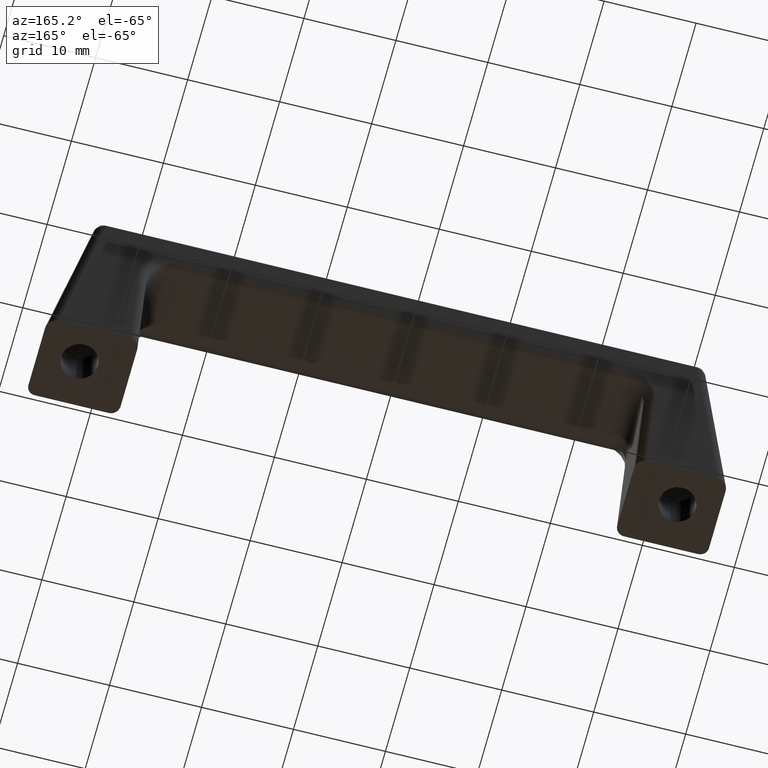
[diagram: clean part render]
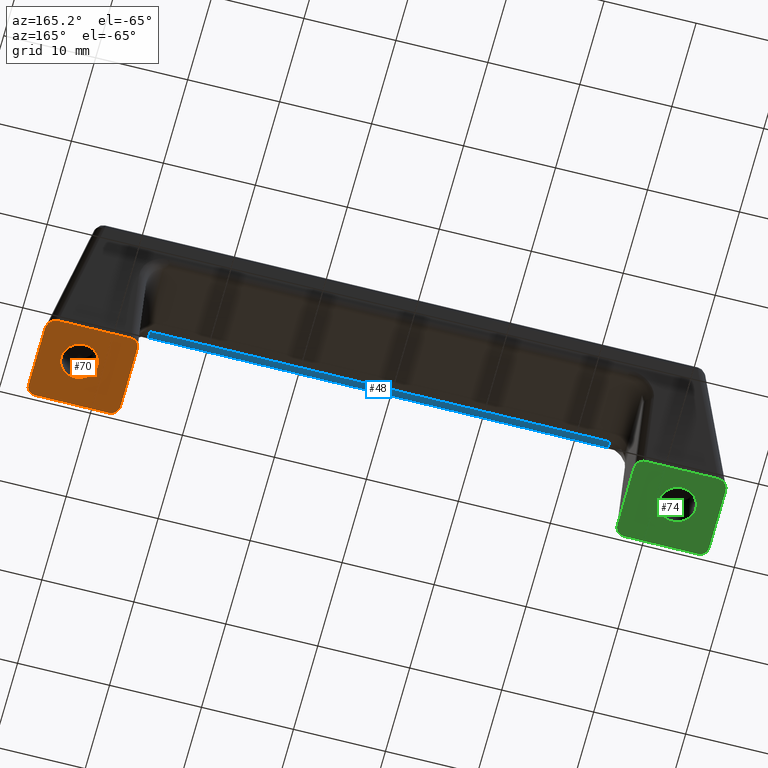
[diagram: same view with three faces highlighted in distinct colors, each labeled with its STEP entity id]
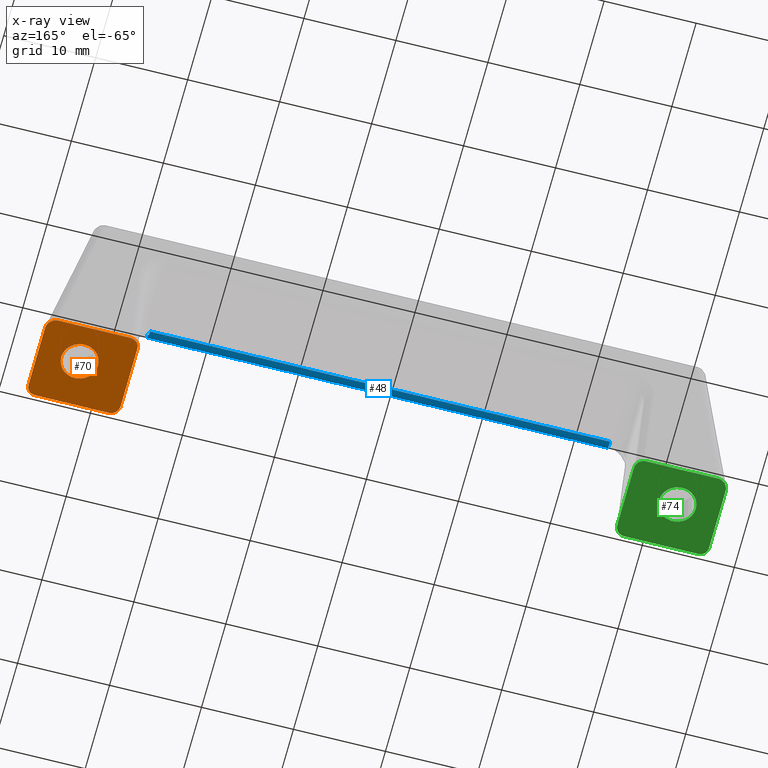
[diagram: x-ray of the same camera — body ghosted, the three highlighted faces saturated]
A machine part, auxiliary view with three faces highlighted in distinct colors.
The next image is the same camera in x-ray (body ghosted, the three faces saturated) — at least one of them is partly hidden behind the body in this view.
Their STEP definitions:

[orange] entity #70 — the highlighted planar face has unit normal (0, 0, 1).
#70=ADVANCED_FACE('',(#381,#382),#380,.F.);
#380=PLANE('',#1225);
#381=FACE_OUTER_BOUND('',#1226,.T.);
#382=FACE_BOUND('',#1227,.T.);
#1222=CARTESIAN_POINT('',(2.60000000000E+01,-9.00000026315E-01,0.00000000000E+00));
#1223=DIRECTION('',(0.00000000000E+00,0.00000000000E+00,1.00000000000E+00));
#1224=DIRECTION('',(1.00000000000E+00,0.00000000000E+00,0.00000000000E+00));
#1225=AXIS2_PLACEMENT_3D('',#1222,#1223,#1224);
#1226=EDGE_LOOP('',(#1394,#1395,#1396,#1397,#1398,#1399,#1400,#1401));
#1227=EDGE_LOOP('',(#1402,#1403,#1404));
#1394=ORIENTED_EDGE('',*,*,#1535,.F.);
#1395=ORIENTED_EDGE('',*,*,#1504,.T.);
#1396=ORIENTED_EDGE('',*,*,#1536,.T.);
#1397=ORIENTED_EDGE('',*,*,#1519,.T.);
#1398=ORIENTED_EDGE('',*,*,#1537,.T.);
#1399=ORIENTED_EDGE('',*,*,#1472,.T.);
#1400=ORIENTED_EDGE('',*,*,#1532,.T.);
#1401=ORIENTED_EDGE('',*,*,#1475,.T.);
#1402=ORIENTED_EDGE('',*,*,#1538,.T.);
#1403=ORIENTED_EDGE('',*,*,#1539,.T.);
#1404=ORIENTED_EDGE('',*,*,#1540,.T.);
#1472=EDGE_CURVE('',#1645,#1646,#1647,.T.);
#1475=EDGE_CURVE('',#1665,#1666,#1667,.T.);
#1504=EDGE_CURVE('',#1861,#1862,#1863,.T.);
#1519=EDGE_CURVE('',#1962,#1955,#1963,.T.);
#1532=EDGE_CURVE('',#1646,#1665,#2044,.T.);
#1535=EDGE_CURVE('',#1861,#1666,#2062,.T.);
#1536=EDGE_CURVE('',#1862,#1962,#2068,.T.);
#1537=EDGE_CURVE('',#1955,#1645,#2074,.T.);
#1538=EDGE_CURVE('',#2080,#2081,#2082,.T.);
#1539=EDGE_CURVE('',#2081,#2088,#2089,.T.);
#1540=EDGE_CURVE('',#2088,#2080,#2095,.T.);
#1645=VERTEX_POINT('',#2220);
#1646=VERTEX_POINT('',#2221);
#1647=(BOUNDED_CURVE() B_SPLINE_CURVE(2,(#2222,#2223,#2224),.UNSPECIFIED.,.F.,.F.) B_SPLINE_CURVE_WITH_KNOTS((3,3),(0.00000000000E+00,1.00000000000E+00),.UNSPECIFIED.) CURVE() GEOMETRIC_REPRESENTATION_ITEM() RATIONAL_B_SPLINE_CURVE((1.00000000000E+00,7.40086770668E-01,1.00000000000E+00)) REPRESENTATION_ITEM('') );
#1665=VERTEX_POINT('',#2231);
#1666=VERTEX_POINT('',#2232);
#1667=(BOUNDED_CURVE() B_SPLINE_CURVE(2,(#2233,#2234,#2235),.UNSPECIFIED.,.F.,.F.) B_SPLINE_CURVE_WITH_KNOTS((3,3),(0.00000000000E+00,1.00000000000E+00),.UNSPECIFIED.) CURVE() GEOMETRIC_REPRESENTATION_ITEM() RATIONAL_B_SPLINE_CURVE((1.00000000000E+00,7.07106988869E-01,1.00000000000E+00)) REPRESENTATION_ITEM('') );
#1861=VERTEX_POINT('',#2352);
#1862=VERTEX_POINT('',#2353);
#1863=(BOUNDED_CURVE() B_SPLINE_CURVE(2,(#2354,#2355,#2356,#2357,#2358),.UNSPECIFIED.,.F.,.F.) B_SPLINE_CURVE_WITH_KNOTS((3,2,3),(0.00000000000E+00,5.00000000000E-01,1.00000000000E+00),.UNSPECIFIED.) CURVE() GEOMETRIC_REPRESENTATION_ITEM() RATIONAL_B_SPLINE_CURVE((1.00000000000E+00,9.23879476078E-01,1.00000000000E+00,9.23879476078E-01,1.00000000000E+00)) REPRESENTATION_ITEM('') );
#1955=VERTEX_POINT('',#2414);
#1962=VERTEX_POINT('',#2418);
#1963=(BOUNDED_CURVE() B_SPLINE_CURVE(2,(#2419,#2420,#2421,#2422,#2423),.UNSPECIFIED.,.F.,.F.) B_SPLINE_CURVE_WITH_KNOTS((3,2,3),(0.00000000000E+00,5.00000000000E-01,1.00000000000E+00),.UNSPECIFIED.) CURVE() GEOMETRIC_REPRESENTATION_ITEM() RATIONAL_B_SPLINE_CURVE((1.00000000000E+00,9.14470510709E-01,1.00000000000E+00,9.14470510709E-01,1.00000000000E+00)) REPRESENTATION_ITEM('') );
#2044=LINE('',#2466,#2467);
#2062=LINE('',#2475,#2476);
#2068=LINE('',#2478,#2479);
#2074=LINE('',#2481,#2482);
#2080=VERTEX_POINT('',#2484);
#2081=VERTEX_POINT('',#2485);
#2082=CIRCLE('',#2489,2.00000000018E+00);
#2088=VERTEX_POINT('',#2490);
#2089=CIRCLE('',#2494,2.00000000018E+00);
#2095=CIRCLE('',#2498,2.00000000018E+00);
#2220=CARTESIAN_POINT('',(3.70000000000E+01,9.74213430682E-01,0.00000000000E+00));
#2221=CARTESIAN_POINT('',(3.60640080251E+01,0.00000000000E+00,0.00000000000E+00));
#2222=CARTESIAN_POINT('',(3.70000000000E+01,9.74213430682E-01,0.00000000000E+00));
#2223=CARTESIAN_POINT('',(3.70000000000E+01,2.42861300000E-14,0.00000000000E+00));
#2224=CARTESIAN_POINT('',(3.60640080251E+01,3.85976000000E-14,0.00000000000E+00));
#2231=CARTESIAN_POINT('',(2.80000000000E+01,0.00000000000E+00,0.00000000000E+00));
#2232=CARTESIAN_POINT('',(2.70000000000E+01,1.07702262451E+00,0.00000000000E+00));
#2233=CARTESIAN_POINT('',(2.80000000000E+01,0.00000000000E+00,0.00000000000E+00));
#2234=CARTESIAN_POINT('',(2.70000000000E+01,6.32659729000E-07,0.00000000000E+00));
#2235=CARTESIAN_POINT('',(2.70000000000E+01,1.07702262451E+00,0.00000000000E+00));
#2352=CARTESIAN_POINT('',(2.70000000000E+01,7.92298338782E+00,0.00000000000E+00));
#2353=CARTESIAN_POINT('',(2.80000000000E+01,9.00000000000E+00,0.00000000000E+00));
#2354=CARTESIAN_POINT('',(2.70000000000E+01,7.92298338782E+00,0.00000000000E+00));
#2355=CARTESIAN_POINT('',(2.70000000000E+01,8.36909846156E+00,0.00000000000E+00));
#2356=CARTESIAN_POINT('',(2.72928934274E+01,8.68454936235E+00,0.00000000000E+00));
#2357=CARTESIAN_POINT('',(2.75857868547E+01,9.00000026315E+00,0.00000000000E+00));
#2358=CARTESIAN_POINT('',(2.80000000000E+01,9.00000000000E+00,0.00000000000E+00));
#2414=CARTESIAN_POINT('',(3.70000000000E+01,7.82017835546E+00,0.00000000000E+00));
#2418=CARTESIAN_POINT('',(3.58664601400E+01,9.00000000000E+00,0.00000000000E+00));
#2419=CARTESIAN_POINT('',(3.58664601400E+01,9.00000000000E+00,0.00000000000E+00));
#2420=CARTESIAN_POINT('',(3.63222533333E+01,9.00000000000E+00,0.00000000000E+00));
#2421=CARTESIAN_POINT('',(3.66611266666E+01,8.64729066213E+00,0.00000000000E+00));
#2422=CARTESIAN_POINT('',(3.70000000000E+01,8.29458132427E+00,0.00000000000E+00));
#2423=CARTESIAN_POINT('',(3.70000000000E+01,7.82017835546E+00,0.00000000000E+00));
#2466=CARTESIAN_POINT('',(3.60640080251E+01,0.00000000000E+00,0.00000000000E+00));
#2467=VECTOR('',#2468,8.06400802507E+00);
#2468=DIRECTION('',(-1.00000000000E+00,0.00000000000E+00,0.00000000000E+00));
#2475=CARTESIAN_POINT('',(2.70000000000E+01,7.92298338782E+00,0.00000000000E+00));
#2476=VECTOR('',#2477,6.84596076331E+00);
#2477=DIRECTION('',(0.00000000000E+00,-1.00000000000E+00,0.00000000000E+00));
#2478=CARTESIAN_POINT('',(2.80000000000E+01,9.00000000000E+00,0.00000000000E+00));
#2479=VECTOR('',#2480,7.86646014003E+00);
#2480=DIRECTION('',(1.00000000000E+00,0.00000000000E+00,0.00000000000E+00));
#2481=CARTESIAN_POINT('',(3.70000000000E+01,7.82017835546E+00,0.00000000000E+00));
#2482=VECTOR('',#2483,6.84596492478E+00);
#2483=DIRECTION('',(0.00000000000E+00,-1.00000000000E+00,0.00000000000E+00));
#2484=CARTESIAN_POINT('',(3.04999999996E+01,5.00000000000E+00,-2.86127288380E-16));
#2485=CARTESIAN_POINT('',(3.23430818085E+01,3.00616533218E+00,-1.54288288335E-16));
#2486=CARTESIAN_POINT('',(3.24999999998E+01,4.99999999984E+00,-1.43063644190E-16));
#2487=DIRECTION('',(-7.15318220886E-17,-2.69547778602E-31,1.00000000000E+00));
#2488=DIRECTION('',(-1.00000000000E+00,8.15645329127E-11,-7.15318220886E-17));
#2489=AXIS2_PLACEMENT_3D('',#2486,#2487,#2488);
#2490=CARTESIAN_POINT('',(3.26570147599E+01,6.99382706501E+00,-1.31832092309E-16));
#2491=CARTESIAN_POINT('',(3.24999999998E+01,4.99999999984E+00,-1.43063644190E-16));
#2492=DIRECTION('',(-7.15318220886E-17,-2.69547778602E-31,1.00000000000E+00));
#2493=DIRECTION('',(-1.00000000000E+00,8.15645329127E-11,-7.15318220886E-17));
#2494=AXIS2_PLACEMENT_3D('',#2491,#2492,#2493);
#2495=CARTESIAN_POINT('',(3.24999999998E+01,4.99999999984E+00,-1.43063644190E-16));
#2496=DIRECTION('',(-7.15318220886E-17,-2.69547778602E-31,1.00000000000E+00));
#2497=DIRECTION('',(-1.00000000000E+00,8.15645329127E-11,-7.15318220886E-17));
#2498=AXIS2_PLACEMENT_3D('',#2495,#2496,#2497);

[blue] entity #48 — the highlighted cylindrical surface (edge-blend (fillet) strip) has radius 1 mm, axis along (-1, 0, 0).
#48=ADVANCED_FACE('',(#161),#160,.T.);
#160=CYLINDRICAL_SURFACE('',#792,1.00000000000E+00);
#161=FACE_OUTER_BOUND('',#793,.T.);
#789=CARTESIAN_POINT('',(-2.62812500000E+01,5.54471474534E+00,1.11700075624E+01));
#790=DIRECTION('',(-1.00000000000E+00,1.73607468948E-16,1.39858959772E-16));
#791=DIRECTION('',(1.07552855511E-16,9.25209488714E-01,-3.79456719526E-01));
#792=AXIS2_PLACEMENT_3D('',#789,#790,#791);
#793=EDGE_LOOP('',(#1303,#1304,#1305,#1306));
#1303=ORIENTED_EDGE('',*,*,#1482,.T.);
#1304=ORIENTED_EDGE('',*,*,#1483,.F.);
#1305=ORIENTED_EDGE('',*,*,#1479,.F.);
#1306=ORIENTED_EDGE('',*,*,#1484,.F.);
#1479=EDGE_CURVE('',#1693,#1694,#1695,.T.);
#1482=EDGE_CURVE('',#1713,#1714,#1715,.T.);
#1483=EDGE_CURVE('',#1694,#1714,#1721,.T.);
#1484=EDGE_CURVE('',#1713,#1693,#1727,.T.);
#1693=VERTEX_POINT('',#2248);
#1694=VERTEX_POINT('',#2249);
#1695=CIRCLE('',#2253,1.00000000000E+00);
#1713=VERTEX_POINT('',#2260);
#1714=VERTEX_POINT('',#2261);
#1715=CIRCLE('',#2265,1.00000000000E+00);
#1721=LINE('',#2266,#2267);
#1727=LINE('',#2269,#2270);
#2248=CARTESIAN_POINT('',(2.50000000000E+01,4.61622914323E+00,1.15413759599E+01));
#2249=CARTESIAN_POINT('',(2.50000000000E+01,5.65050309147E+00,1.01756188930E+01));
#2250=CARTESIAN_POINT('',(2.50000000000E+01,5.54471474534E+00,1.11700075624E+01));
#2251=DIRECTION('',(1.00000000000E+00,1.00573717107E-15,2.51451789936E-15));
#2252=DIRECTION('',(-0.00000000000E+00,9.28485602105E-01,-3.71368397530E-01));
#2253=AXIS2_PLACEMENT_3D('',#2250,#2251,#2252);
#2260=CARTESIAN_POINT('',(-2.50000000000E+01,4.61622914323E+00,1.15413759599E+01));
#2261=CARTESIAN_POINT('',(-2.50000000000E+01,5.65050309147E+00,1.01756188930E+01));
#2262=CARTESIAN_POINT('',(-2.50000000000E+01,5.54471474534E+00,1.11700075624E+01));
#2263=DIRECTION('',(1.00000000000E+00,-1.00573717107E-15,-2.51451789936E-15));
#2264=DIRECTION('',(-0.00000000000E+00,9.28485602105E-01,-3.71368397530E-01));
#2265=AXIS2_PLACEMENT_3D('',#2262,#2263,#2264);
#2266=CARTESIAN_POINT('',(2.50000000000E+01,5.65050309147E+00,1.01756188930E+01));
#2267=VECTOR('',#2268,5.00000000000E+01);
#2268=DIRECTION('',(-1.00000000000E+00,0.00000000000E+00,0.00000000000E+00));
#2269=CARTESIAN_POINT('',(-2.50000000000E+01,4.61622914323E+00,1.15413759599E+01));
#2270=VECTOR('',#2271,5.00000000000E+01);
#2271=DIRECTION('',(1.00000000000E+00,0.00000000000E+00,0.00000000000E+00));

[green] entity #74 — the highlighted planar face has unit normal (0, 0, 1).
#74=ADVANCED_FACE('',(#422,#423),#421,.F.);
#421=PLANE('',#1246);
#422=FACE_OUTER_BOUND('',#1247,.T.);
#423=FACE_BOUND('',#1248,.T.);
#1243=CARTESIAN_POINT('',(-3.80000000000E+01,-9.00000000000E-01,0.00000000000E+00));
#1244=DIRECTION('',(0.00000000000E+00,0.00000000000E+00,1.00000000000E+00));
#1245=DIRECTION('',(1.00000000000E+00,0.00000000000E+00,0.00000000000E+00));
#1246=AXIS2_PLACEMENT_3D('',#1243,#1244,#1245);
#1247=EDGE_LOOP('',(#1417,#1418,#1419,#1420,#1421,#1422,#1423,#1424));
#1248=EDGE_LOOP('',(#1425,#1426,#1427));
#1417=ORIENTED_EDGE('',*,*,#1541,.F.);
#1418=ORIENTED_EDGE('',*,*,#1513,.T.);
#1419=ORIENTED_EDGE('',*,*,#1542,.T.);
#1420=ORIENTED_EDGE('',*,*,#1491,.T.);
#1421=ORIENTED_EDGE('',*,*,#1534,.T.);
#1422=ORIENTED_EDGE('',*,*,#1488,.T.);
#1423=ORIENTED_EDGE('',*,*,#1533,.T.);
#1424=ORIENTED_EDGE('',*,*,#1461,.T.);
#1425=ORIENTED_EDGE('',*,*,#1543,.F.);
#1426=ORIENTED_EDGE('',*,*,#1544,.F.);
#1427=ORIENTED_EDGE('',*,*,#1545,.F.);
#1461=EDGE_CURVE('',#1571,#1572,#1573,.T.);
#1488=EDGE_CURVE('',#1753,#1754,#1755,.T.);
#1491=EDGE_CURVE('',#1773,#1774,#1775,.T.);
#1513=EDGE_CURVE('',#1922,#1923,#1924,.T.);
#1533=EDGE_CURVE('',#1754,#1571,#2050,.T.);
#1534=EDGE_CURVE('',#1774,#1753,#2056,.T.);
#1541=EDGE_CURVE('',#1922,#1572,#2101,.T.);
#1542=EDGE_CURVE('',#1923,#1773,#2107,.T.);
#1543=EDGE_CURVE('',#2113,#2114,#2115,.T.);
#1544=EDGE_CURVE('',#2121,#2113,#2122,.T.);
#1545=EDGE_CURVE('',#2114,#2121,#2128,.T.);
#1571=VERTEX_POINT('',#2173);
#1572=VERTEX_POINT('',#2174);
#1573=(BOUNDED_CURVE() B_SPLINE_CURVE(2,(#2175,#2176,#2177),.UNSPECIFIED.,.F.,.F.) B_SPLINE_CURVE_WITH_KNOTS((3,3),(0.00000000000E+00,1.00000000000E+00),.UNSPECIFIED.) CURVE() GEOMETRIC_REPRESENTATION_ITEM() RATIONAL_B_SPLINE_CURVE((1.00000000000E+00,7.40086770668E-01,1.00000000000E+00)) REPRESENTATION_ITEM('') );
#1753=VERTEX_POINT('',#2286);
#1754=VERTEX_POINT('',#2287);
#1755=(BOUNDED_CURVE() B_SPLINE_CURVE(2,(#2288,#2289,#2290),.UNSPECIFIED.,.F.,.F.) B_SPLINE_CURVE_WITH_KNOTS((3,3),(0.00000000000E+00,1.00000000000E+00),.UNSPECIFIED.) CURVE() GEOMETRIC_REPRESENTATION_ITEM() RATIONAL_B_SPLINE_CURVE((1.00000000000E+00,7.07106781187E-01,1.00000000000E+00)) REPRESENTATION_ITEM('') );
#1773=VERTEX_POINT('',#2297);
#1774=VERTEX_POINT('',#2298);
#1775=(BOUNDED_CURVE() B_SPLINE_CURVE(2,(#2299,#2300,#2301),.UNSPECIFIED.,.F.,.F.) B_SPLINE_CURVE_WITH_KNOTS((3,3),(0.00000000000E+00,1.00000000000E+00),.UNSPECIFIED.) CURVE() GEOMETRIC_REPRESENTATION_ITEM() RATIONAL_B_SPLINE_CURVE((1.00000000000E+00,7.07106781187E-01,1.00000000000E+00)) REPRESENTATION_ITEM('') );
#1922=VERTEX_POINT('',#2392);
#1923=VERTEX_POINT('',#2393);
#1924=(BOUNDED_CURVE() B_SPLINE_CURVE(2,(#2394,#2395,#2396,#2397,#2398),.UNSPECIFIED.,.F.,.F.) B_SPLINE_CURVE_WITH_KNOTS((3,2,3),(0.00000000000E+00,5.00000000000E-01,1.00000000000E+00),.UNSPECIFIED.) CURVE() GEOMETRIC_REPRESENTATION_ITEM() RATIONAL_B_SPLINE_CURVE((1.00000000000E+00,9.14470510709E-01,1.00000000000E+00,9.14470510709E-01,1.00000000000E+00)) REPRESENTATION_ITEM('') );
#2050=LINE('',#2469,#2470);
#2056=LINE('',#2472,#2473);
#2101=LINE('',#2499,#2500);
#2107=LINE('',#2502,#2503);
#2113=VERTEX_POINT('',#2505);
#2114=VERTEX_POINT('',#2506);
#2115=CIRCLE('',#2510,2.00000000000E+00);
#2121=VERTEX_POINT('',#2511);
#2122=CIRCLE('',#2515,2.00000000000E+00);
#2128=CIRCLE('',#2519,2.00000000000E+00);
#2173=CARTESIAN_POINT('',(-3.60640080251E+01,0.00000000000E+00,0.00000000000E+00));
#2174=CARTESIAN_POINT('',(-3.70000000000E+01,9.74213430682E-01,0.00000000000E+00));
#2175=CARTESIAN_POINT('',(-3.60640080251E+01,1.14925400000E-14,0.00000000000E+00));
#2176=CARTESIAN_POINT('',(-3.70000000000E+01,8.21825200000E-14,0.00000000000E+00));
#2177=CARTESIAN_POINT('',(-3.70000000000E+01,9.74213430682E-01,0.00000000000E+00));
#2286=CARTESIAN_POINT('',(-2.70000000000E+01,1.07702262451E+00,0.00000000000E+00));
#2287=CARTESIAN_POINT('',(-2.80000000000E+01,0.00000000000E+00,0.00000000000E+00));
#2288=CARTESIAN_POINT('',(-2.70000000000E+01,1.07702262451E+00,0.00000000000E+00));
#2289=CARTESIAN_POINT('',(-2.70000000000E+01,-1.99493200000E-14,0.00000000000E+00));
#2290=CARTESIAN_POINT('',(-2.80000000000E+01,-1.99493200000E-14,0.00000000000E+00));
#2297=CARTESIAN_POINT('',(-2.80000000000E+01,9.00000000000E+00,0.00000000000E+00));
#2298=CARTESIAN_POINT('',(-2.70000000000E+01,7.92298338782E+00,0.00000000000E+00));
#2299=CARTESIAN_POINT('',(-2.80000000000E+01,9.00000000000E+00,0.00000000000E+00));
#2300=CARTESIAN_POINT('',(-2.70000000000E+01,9.00000000000E+00,0.00000000000E+00));
#2301=CARTESIAN_POINT('',(-2.70000000000E+01,7.92298338782E+00,0.00000000000E+00));
#2392=CARTESIAN_POINT('',(-3.70000000000E+01,7.82017835546E+00,0.00000000000E+00));
#2393=CARTESIAN_POINT('',(-3.58664601400E+01,9.00000000000E+00,0.00000000000E+00));
#2394=CARTESIAN_POINT('',(-3.70000000000E+01,7.82017835546E+00,0.00000000000E+00));
#2395=CARTESIAN_POINT('',(-3.70000000000E+01,8.29458132427E+00,0.00000000000E+00));
#2396=CARTESIAN_POINT('',(-3.66611266666E+01,8.64729066213E+00,0.00000000000E+00));
#2397=CARTESIAN_POINT('',(-3.63222533333E+01,9.00000000000E+00,0.00000000000E+00));
#2398=CARTESIAN_POINT('',(-3.58664601400E+01,9.00000000000E+00,0.00000000000E+00));
#2469=CARTESIAN_POINT('',(-2.80000000000E+01,0.00000000000E+00,0.00000000000E+00));
#2470=VECTOR('',#2471,8.06400802507E+00);
#2471=DIRECTION('',(-1.00000000000E+00,0.00000000000E+00,0.00000000000E+00));
#2472=CARTESIAN_POINT('',(-2.70000000000E+01,7.92298338782E+00,0.00000000000E+00));
#2473=VECTOR('',#2474,6.84596076331E+00);
#2474=DIRECTION('',(0.00000000000E+00,-1.00000000000E+00,0.00000000000E+00));
#2499=CARTESIAN_POINT('',(-3.70000000000E+01,7.82017835546E+00,0.00000000000E+00));
#2500=VECTOR('',#2501,6.84596492478E+00);
#2501=DIRECTION('',(0.00000000000E+00,-1.00000000000E+00,0.00000000000E+00));
#2502=CARTESIAN_POINT('',(-3.58664601400E+01,9.00000000000E+00,0.00000000000E+00));
#2503=VECTOR('',#2504,7.86646014003E+00);
#2504=DIRECTION('',(1.00000000000E+00,0.00000000000E+00,0.00000000000E+00));
#2505=CARTESIAN_POINT('',(-3.22639322570E+01,3.01398086094E+00,-2.83883207003E-16));
#2506=CARTESIAN_POINT('',(-3.45000000000E+01,5.00000000000E+00,-2.58498306773E-15));
#2507=CARTESIAN_POINT('',(-3.25000000000E+01,5.00000000000E+00,-2.12926865160E-16));
#2508=DIRECTION('',(1.18602810128E-15,1.76704902783E-16,-1.00000000000E+00));
#2509=DIRECTION('',(-1.00000000000E+00,-3.10862446895E-15,-1.18602810128E-15));
#2510=AXIS2_PLACEMENT_3D('',#2507,#2508,#2509);
#2511=CARTESIAN_POINT('',(-3.27364117913E+01,6.98597821361E+00,-1.42385805977E-16));
#2512=CARTESIAN_POINT('',(-3.25000000000E+01,5.00000000000E+00,-2.12926865160E-16));
#2513=DIRECTION('',(1.18602810128E-15,1.76704902783E-16,-1.00000000000E+00));
#2514=DIRECTION('',(-1.00000000000E+00,-3.10862446895E-15,-1.18602810128E-15));
#2515=AXIS2_PLACEMENT_3D('',#2512,#2513,#2514);
#2516=CARTESIAN_POINT('',(-3.25000000000E+01,5.00000000000E+00,-2.12926865160E-16));
#2517=DIRECTION('',(1.18602810128E-15,1.76704902783E-16,-1.00000000000E+00));
#2518=DIRECTION('',(-1.00000000000E+00,-3.10862446895E-15,-1.18602810128E-15));
#2519=AXIS2_PLACEMENT_3D('',#2516,#2517,#2518);